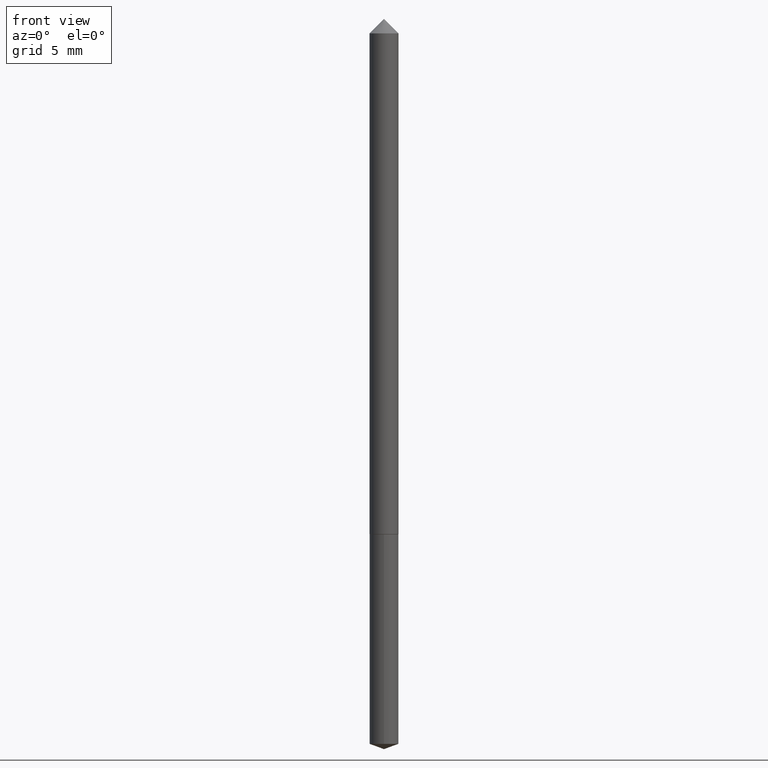
[diagram: clean part render]
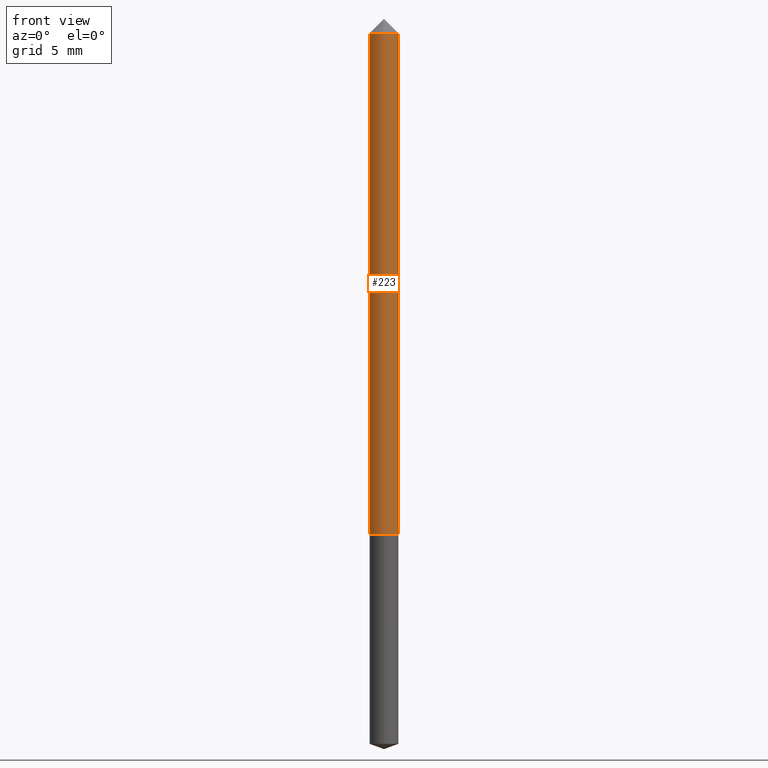
[diagram: same view with one face highlighted and labeled with its STEP entity id]
A machine part, front view. The second image highlights one B-rep face of the part: STEP entity #223.
In plain terms, the highlighted cylindrical surface (edge-blend (fillet) strip) has radius 0.7557 mm, axis along (-0, 0, 1).
Its self-contained STEP definition (entity closure, byte-faithful):
#2 = CARTESIAN_POINT ( 'NONE',  ( -0.02975000000000000214, -1.691907300948238426E-15, -0.03125000000000020817 ) ) ;
#8 = ORIENTED_EDGE ( 'NONE', *, *, #179, .F. ) ;
#24 = DIRECTION ( 'NONE',  ( -2.445468806185136597E-29, 3.491481338843145583E-15, 1.000000000000000000 ) ) ;
#39 = CARTESIAN_POINT ( 'NONE',  ( -0.02975000000000006459, 2.113864638886302642E-16, -1.463383189350837589E-30 ) ) ;
#51 = VERTEX_POINT ( 'NONE', #2 ) ;
#59 = VERTEX_POINT ( 'NONE', #94 ) ;
#64 = AXIS2_PLACEMENT_3D ( 'NONE', #109, #344, #257 ) ;
#80 = VECTOR ( 'NONE', #198, 39.37007874015748143 ) ;
#82 = DIRECTION ( 'NONE',  ( -2.445468806185136597E-29, 3.491481338843145583E-15, 1.000000000000000000 ) ) ;
#94 = CARTESIAN_POINT ( 'NONE',  ( 0.02975000000000000214, -3.168519315000154702E-16, -0.03125000000000020817 ) ) ;
#97 = LINE ( 'NONE', #39, #80 ) ;
#103 = AXIS2_PLACEMENT_3D ( 'NONE', #317, #82, #177 ) ;
#109 = CARTESIAN_POINT ( 'NONE',  ( 2.589751465750059705E-29, -3.697478737834891287E-15, -1.059000000000000163 ) ) ;
#113 = LINE ( 'NONE', #316, #163 ) ;
#124 = CYLINDRICAL_SURFACE ( 'NONE', #318, 0.02975000000000006459 ) ;
#126 = EDGE_CURVE ( 'NONE', #51, #59, #312, .T. ) ;
#163 = VECTOR ( 'NONE', #205, 39.37007874015748143 ) ;
#173 = EDGE_LOOP ( 'NONE', ( #8, #231, #208, #266 ) ) ;
#177 = DIRECTION ( 'NONE',  ( 1.000000000000000000, -6.982962677686267499E-15, 0.000000000000000000 ) ) ;
#179 = EDGE_CURVE ( 'NONE', #230, #51, #97, .T. ) ;
#198 = DIRECTION ( 'NONE',  ( -2.445468806185136877E-29, 3.491481338843145188E-15, 1.000000000000000000 ) ) ;
#202 = DIRECTION ( 'NONE',  ( 1.000000000000000000, -6.982962677686266711E-15, 4.876176775795935232E-29 ) ) ;
#205 = DIRECTION ( 'NONE',  ( -2.445468806185136877E-29, 3.491481338843145188E-15, 1.000000000000000000 ) ) ;
#208 = ORIENTED_EDGE ( 'NONE', *, *, #256, .T. ) ;
#215 = CIRCLE ( 'NONE', #64, 0.02975000000000012704 ) ;
#223 = ADVANCED_FACE ( 'NONE', ( #226 ), #124, .T. ) ;
#226 = FACE_OUTER_BOUND ( 'NONE', #173, .T. ) ;
#230 = VERTEX_POINT ( 'NONE', #345 ) ;
#231 = ORIENTED_EDGE ( 'NONE', *, *, #310, .T. ) ;
#236 = CARTESIAN_POINT ( 'NONE',  ( 0.02975000000000012704, -3.905221877496058889E-15, -1.059000000000000163 ) ) ;
#239 = VERTEX_POINT ( 'NONE', #236 ) ;
#251 = CARTESIAN_POINT ( 'NONE',  ( 0.000000000000000000, 0.000000000000000000, 0.000000000000000000 ) ) ;
#256 = EDGE_CURVE ( 'NONE', #239, #59, #113, .T. ) ;
#257 = DIRECTION ( 'NONE',  ( 1.000000000000000000, -6.982962677686261977E-15, 0.000000000000000000 ) ) ;
#266 = ORIENTED_EDGE ( 'NONE', *, *, #126, .F. ) ;
#310 = EDGE_CURVE ( 'NONE', #230, #239, #215, .T. ) ;
#312 = CIRCLE ( 'NONE', #103, 0.02975000000000000214 ) ;
#316 = CARTESIAN_POINT ( 'NONE',  ( 0.02975000000000006459, -2.077431396611668872E-16, 1.450662590799293904E-30 ) ) ;
#317 = CARTESIAN_POINT ( 'NONE',  ( 7.642090019328602662E-31, -1.091087918388490267E-16, -0.03125000000000020817 ) ) ;
#318 = AXIS2_PLACEMENT_3D ( 'NONE', #251, #24, #202 ) ;
#344 = DIRECTION ( 'NONE',  ( -2.445468806185136597E-29, 3.491481338843145583E-15, 1.000000000000000000 ) ) ;
#345 = CARTESIAN_POINT ( 'NONE',  ( -0.02975000000000012704, -3.486092273946260702E-15, -1.059000000000000163 ) ) ;